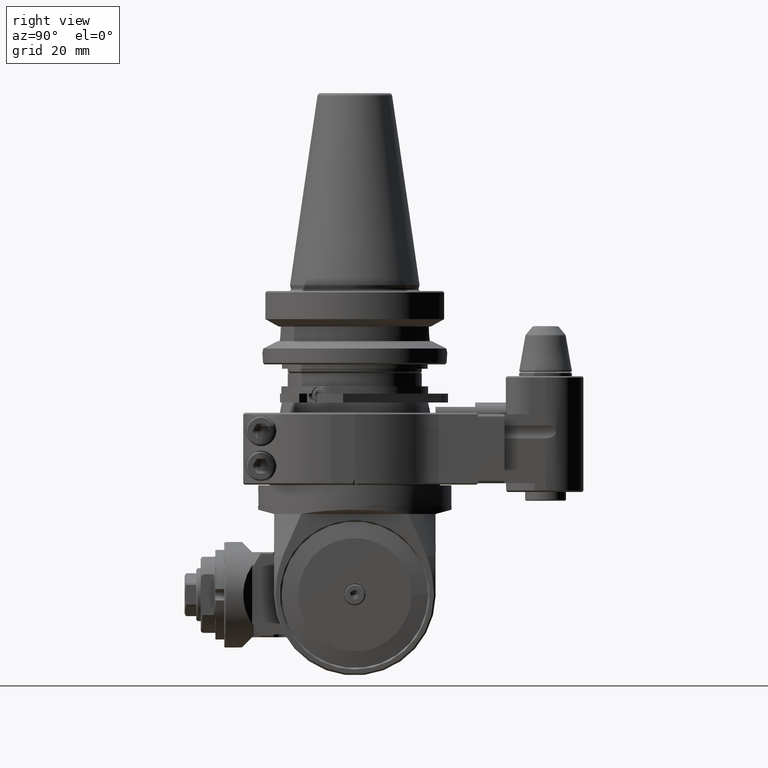
[diagram: clean part render]
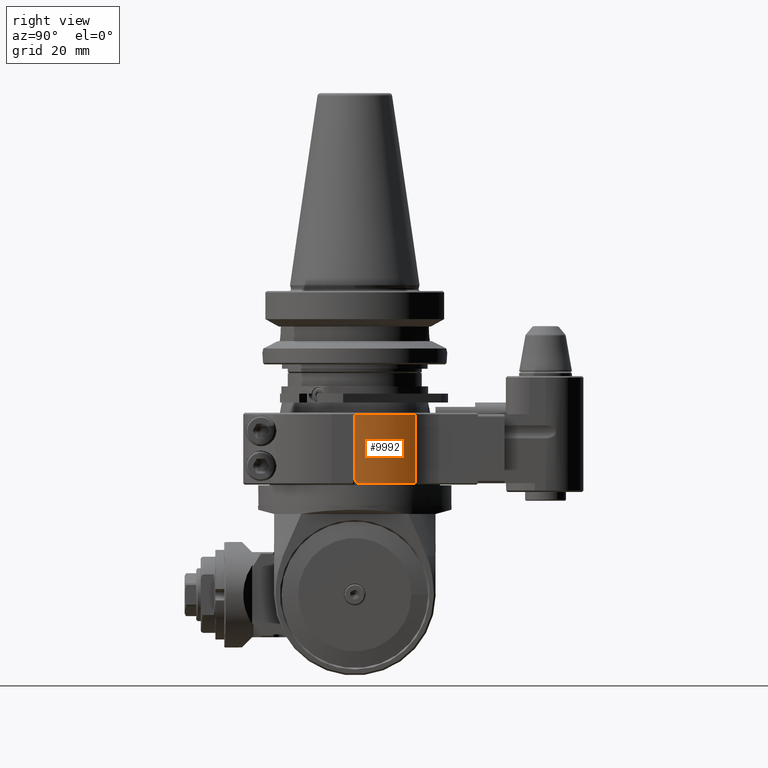
[diagram: same view with one face highlighted and labeled with its STEP entity id]
A machine part, right view. The second image highlights one B-rep face of the part: STEP entity #9992.
In plain terms, the highlighted cylindrical surface (partial cylindrical patch) has radius 33 mm, axis along (0, 0, -1).
Its self-contained STEP definition (entity closure, byte-faithful):
#201=ELLIPSE('',#10703,93.3380951166154,33.);
#566=LINE('',#15139,#1402);
#567=LINE('',#15144,#1403);
#1402=VECTOR('',#12010,23.50000004466);
#1403=VECTOR('',#12015,22.00000004466);
#2128=CYLINDRICAL_SURFACE('',#10701,33.);
#2302=FACE_OUTER_BOUND('',#2908,.T.);
#2908=EDGE_LOOP('',(#6820,#6821,#6822,#6823,#6824));
#3591=CIRCLE('',#10702,33.);
#3592=CIRCLE('',#10704,33.);
#4150=VERTEX_POINT('',#15132);
#4151=VERTEX_POINT('',#15137);
#4152=VERTEX_POINT('',#15141);
#4153=VERTEX_POINT('',#15143);
#4154=VERTEX_POINT('',#15145);
#5199=EDGE_CURVE('',#4150,#4151,#566,.T.);
#5200=EDGE_CURVE('',#4152,#4151,#3591,.T.);
#5201=EDGE_CURVE('',#4152,#4153,#567,.T.);
#5202=EDGE_CURVE('',#4153,#4154,#201,.T.);
#5203=EDGE_CURVE('',#4150,#4154,#3592,.T.);
#6820=ORIENTED_EDGE('',*,*,#5200,.F.);
#6821=ORIENTED_EDGE('',*,*,#5201,.T.);
#6822=ORIENTED_EDGE('',*,*,#5202,.T.);
#6823=ORIENTED_EDGE('',*,*,#5203,.F.);
#6824=ORIENTED_EDGE('',*,*,#5199,.T.);
#9992=ADVANCED_FACE('',(#2302),#2128,.T.);
#10701=AXIS2_PLACEMENT_3D('',#15140,#12011,#12012);
#10702=AXIS2_PLACEMENT_3D('',#15142,#12013,#12014);
#10703=AXIS2_PLACEMENT_3D('',#15146,#12016,#12017);
#10704=AXIS2_PLACEMENT_3D('',#15147,#12018,#12019);
#12010=DIRECTION('',(0.,0.,1.));
#12011=DIRECTION('center_axis',(0.,0.,-1.));
#12012=DIRECTION('ref_axis',(-0.707106781186498,-0.707106781186597,0.));
#12013=DIRECTION('center_axis',(0.,0.,1.));
#12014=DIRECTION('ref_axis',(1.,0.,0.));
#12015=DIRECTION('',(0.,0.,-1.));
#12016=DIRECTION('center_axis',(-0.612372435695813,0.707106781186515,0.353553390593307));
#12017=DIRECTION('ref_axis',(0.23145502494317,-0.267261241912441,0.935414346693473));
#12018=DIRECTION('center_axis',(0.,0.,-1.));
#12019=DIRECTION('ref_axis',(0.782608695652177,0.622513959272881,0.));
#15132=CARTESIAN_POINT('',(25.82608695652,20.54296065601,0.500000000000003));
#15137=CARTESIAN_POINT('',(25.82608695652,20.54296065601,24.000000044661));
#15139=CARTESIAN_POINT('',(25.82608695652,20.54296065601,0.500000000000003));
#15140=CARTESIAN_POINT('Origin',(0.,0.,17.));
#15141=CARTESIAN_POINT('',(33.,1.695310558603E-13,24.000000044661));
#15142=CARTESIAN_POINT('Origin',(0.,0.,24.000000044661));
#15143=CARTESIAN_POINT('',(33.,1.738609256563E-13,2.));
#15144=CARTESIAN_POINT('',(33.,1.695310558603E-13,24.000000044661));
#15145=CARTESIAN_POINT('',(32.99163996509,0.7427599973936,0.500000000000003));
#15146=CARTESIAN_POINT('Origin',(0.,0.,-55.1576766497714));
#15147=CARTESIAN_POINT('Origin',(0.,0.,0.500000000000003));